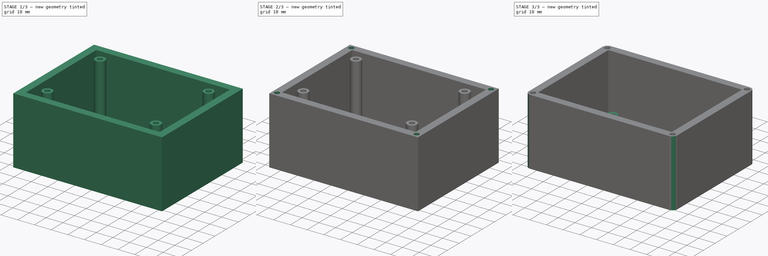
[diagram: build sequence overview — one tinted view per stage of 3, left to right]
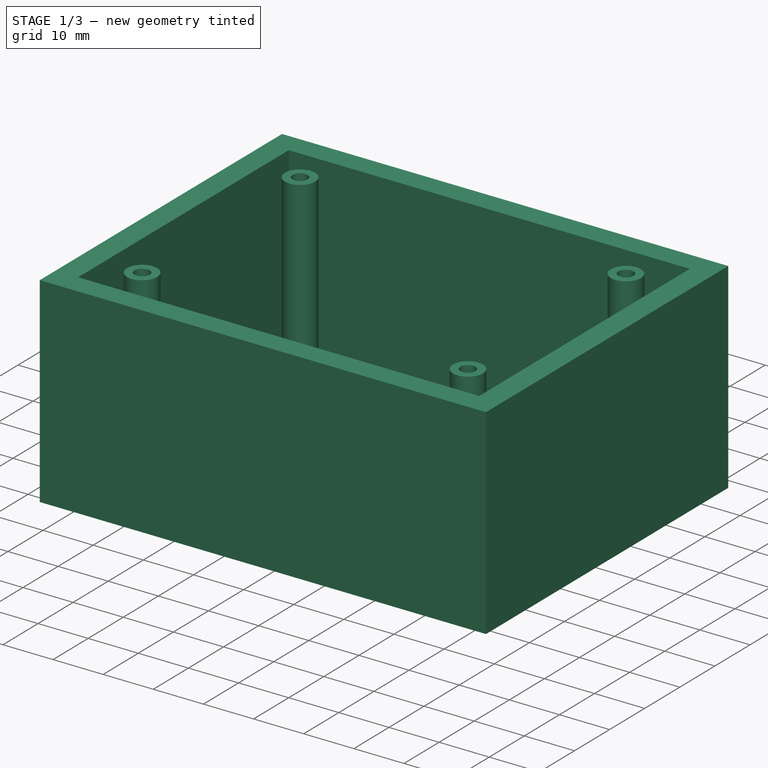
[diagram: stage 1 of 3 — iso view after this stage's code; geometry added in this stage tinted green]
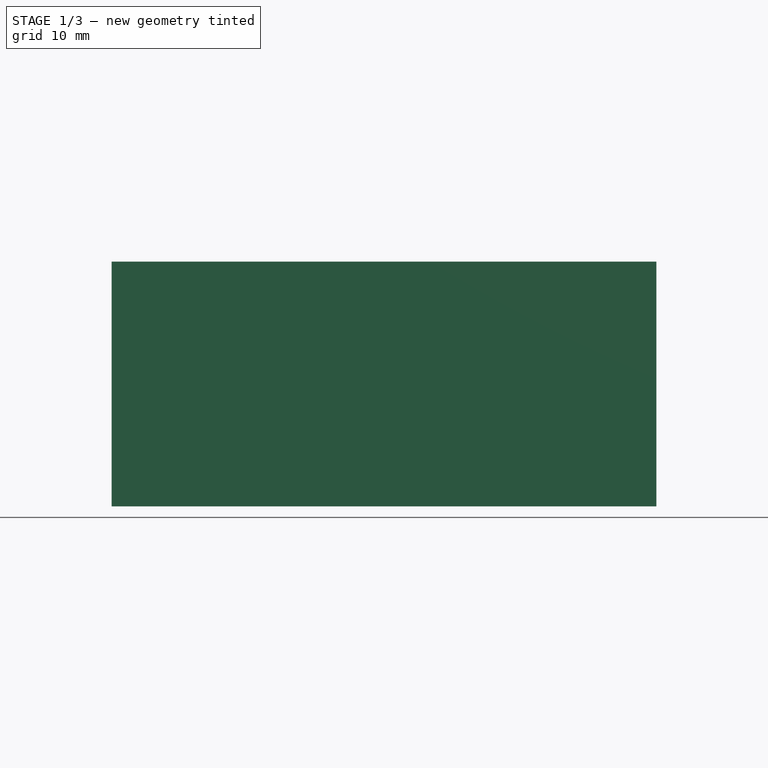
[diagram: stage 1 of 3 — front view after this stage's code; geometry added in this stage tinted green]
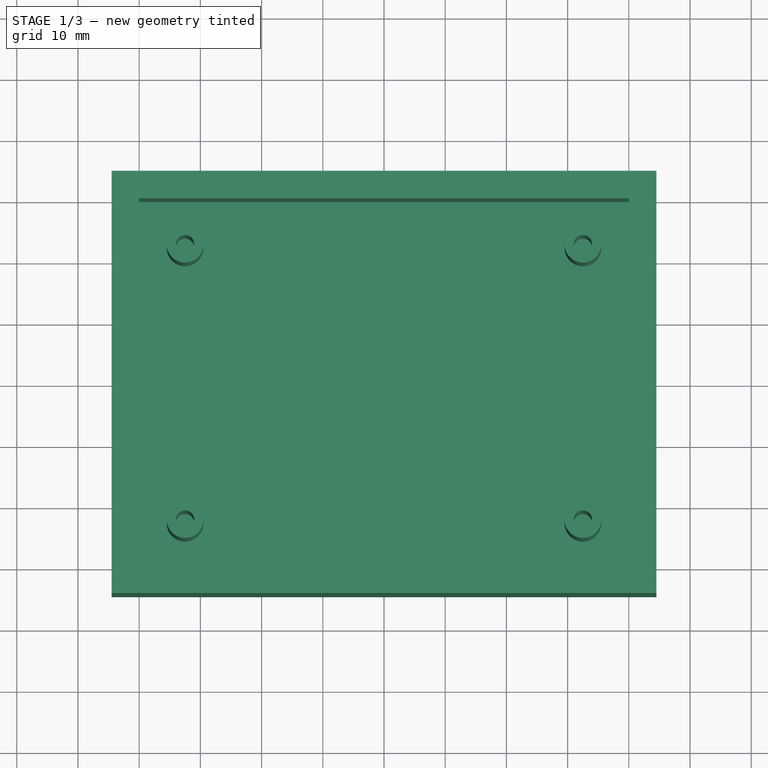
[diagram: stage 1 of 3 — top view after this stage's code; geometry added in this stage tinted green]
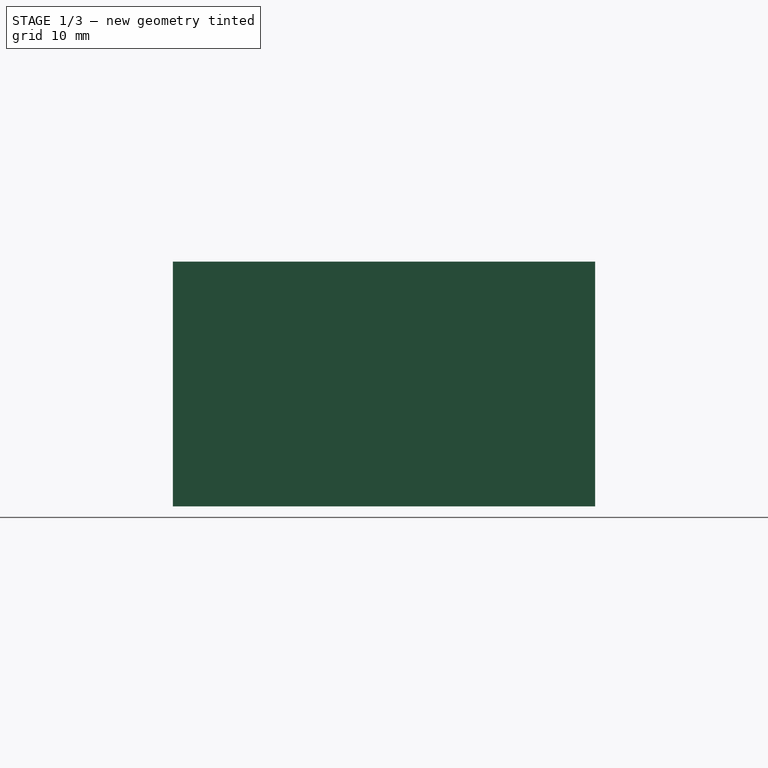
[diagram: stage 1 of 3 — right view after this stage's code; geometry added in this stage tinted green]
FCSTD DOCUMENT  (FreeCAD 1.0R38641 +468 (Git))
Label: derivation_box
License: All rights reserved
LicenseURL: https://en.wikipedia.org/wiki/All_rights_reserved
objects: Sketcher::SketchObject×4, PartDesign::Pocket×3, PartDesign::Plane×2, PartDesign::Pad×1, PartDesign::Fillet×1, PartDesign::Body×1, Spreadsheet::Sheet×1
note: 26 computed .brp shape members not serialized (recipe doc carries the construction recipe); baked Part::Feature solids carry a one-line shape summary decoded from their .brp

FEATURE [Sketcher::SketchObject] Sketch
  ArcFitTolerance = 1e-06
  AttachmentSupport = -> [XY_Plane]
  FullyConstrained = true
  MakeInternals = false
  MapMode = 5
  sketch-geometry (4):
    g0: LineSegment StartX=-44.5 StartY=-34.5 StartZ=0 EndX=44.5 EndY=-34.5 EndZ=0
    g1: LineSegment StartX=44.5 StartY=-34.5 StartZ=0 EndX=44.5 EndY=34.5 EndZ=0
    g2: LineSegment StartX=44.5 StartY=34.5 StartZ=0 EndX=-44.5 EndY=34.5 EndZ=0
    g3: LineSegment StartX=-44.5 StartY=34.5 StartZ=0 EndX=-44.5 EndY=-34.5 EndZ=0
  constraints (11):
    c: Coincident(g0,g1)
    c: Coincident(g1,g2)
    c: Coincident(g2,g3)
    c: Coincident(g3,g0)
    c: Horizontal(g0)
    c: Horizontal(g2)
    c: Vertical(g1)
    c: Vertical(g3)
    c: DistanceX(g0,g0) = 89
    c: DistanceY(g1,g1) = 69
    c: Symmetric(g0,g1,g-1)
FEATURE [PartDesign::Pad] Pad
  Direction = (0,0,1)
  Length = 40
  Length2 = 10
  Profile = -> Sketch
  ReferenceAxis = -> Sketch [N_Axis]
  Refine = true
  Suppressed = false
  Type = 0
FEATURE [PartDesign::Plane] DatumPlane
  AttachmentSupport = -> [Pad]
  Length = 104.673
  MapMode = 5
  Placement = pos=(0,0,40) rot=(0,0,1;0rad)
  ResizeMode = 0
  Width = 84.6729
FEATURE [Sketcher::SketchObject] Sketch001
  ArcFitTolerance = 1e-06
  AttachmentSupport = -> [DatumPlane]
  FullyConstrained = true
  MakeInternals = false
  MapMode = 5
  Placement = pos=(0,0,40) rot=(0,0,1;0rad)
  sketch-geometry (20):
    g0: LineSegment [constr] StartX=-32.5 StartY=-22.5 StartZ=0 EndX=32.5 EndY=-22.5 EndZ=0
    g1: LineSegment [constr] StartX=32.5 StartY=-22.5 StartZ=0 EndX=32.5 EndY=22.5 EndZ=0
    g2: LineSegment [constr] StartX=32.5 StartY=22.5 StartZ=0 EndX=-32.5 EndY=22.5 EndZ=0
    g3: LineSegment [constr] StartX=-32.5 StartY=22.5 StartZ=0 EndX=-32.5 EndY=-22.5 EndZ=0
    g4: GeomPoint [constr] X=0 Y=0 Z=0
    g5: Circle CenterX=-32.5 CenterY=22.5 CenterZ=0 NormalX=0 NormalY=0 NormalZ=1 AngleXU=0 Radius=1.5
    g6: Circle CenterX=32.5 CenterY=22.5 CenterZ=0 NormalX=0 NormalY=0 NormalZ=1 AngleXU=0 Radius=1.5
    g7: Circle CenterX=32.5 CenterY=-22.5 CenterZ=0 NormalX=0 NormalY=0 NormalZ=1 AngleXU=0 Radius=1.5
    g8: Circle CenterX=-32.5 CenterY=-22.5 CenterZ=0 NormalX=0 NormalY=0 NormalZ=1 AngleXU=0 Radius=1.5
    g9: LineSegment StartX=-40 StartY=-30 StartZ=0 EndX=40 EndY=-30 EndZ=0
    g10: LineSegment StartX=40 StartY=-30 StartZ=0 EndX=40 EndY=30 EndZ=0
    g11: LineSegment StartX=40 StartY=30 StartZ=0 EndX=-40 EndY=30 EndZ=0
    g12: LineSegment StartX=-40 StartY=30 StartZ=0 EndX=-40 EndY=-30 EndZ=0
    g13: GeomPoint [constr] X=0 Y=0 Z=0
    g14: GeomPoint [constr] X=0 Y=0 Z=0
    g15: GeomPoint [constr] X=0 Y=0 Z=0
    g16: Circle CenterX=-32.5 CenterY=22.5 CenterZ=0 NormalX=0 NormalY=0 NormalZ=1 AngleXU=0 Radius=3
    g17: Circle CenterX=32.5 CenterY=22.5 CenterZ=0 NormalX=0 NormalY=0 NormalZ=1 AngleXU=0 Radius=3
    g18: Circle CenterX=32.5 CenterY=-22.5 CenterZ=0 NormalX=0 NormalY=0 NormalZ=1 AngleXU=0 Radius=3
    g19: Circle CenterX=-32.5 CenterY=-22.5 CenterZ=0 NormalX=0 NormalY=0 NormalZ=1 AngleXU=0 Radius=3
  constraints (42):
    c: Coincident(g0,g1)
    c: Coincident(g1,g2)
    c: Coincident(g2,g3)
    c: Coincident(g3,g0)
    c: Horizontal(g0)
    c: Horizontal(g2)
    c: Vertical(g1)
    c: Vertical(g3)
    c: Symmetric(g2,g0,g4)
    c: Distance(g1,g3) = 65
    c: Distance(g0,g2) = 45
    c: Coincident(g4,g-1)
    c: Coincident(g5,g2)
    c: Coincident(g6,g1)
    c: Coincident(g7,g0)
    c: Coincident(g8,g0)
    c: Equal(g7,g8)
    c: Equal(g8,g5)
    c: Equal(g5,g6)
    c: Diameter(g6) = 3
    c: Coincident(g9,g10)
    c: Coincident(g10,g11)
    c: Coincident(g11,g12)
    c: Coincident(g12,g9)
    c: Horizontal(g9)
    c: Horizontal(g11)
    c: Vertical(g10)
    c: Vertical(g12)
    c: Symmetric(g11,g9,g13)
    c: Coincident(g13,g4)
    c: DistanceX(g9,g9) = 80
    c: DistanceY(g12,g12) = 60
    c: Coincident(g14,g4)
    c: Coincident(g15,g4)
    c: Coincident(g16,g2)
    c: Coincident(g17,g1)
    c: Coincident(g18,g0)
    c: Coincident(g19,g0)
    c: Equal(g16,g19)
    c: Equal(g19,g18)
    c: Equal(g18,g17)
    c: Diameter(g17) = 6
FEATURE [PartDesign::Pocket] Pocket
  BaseFeature = -> Pad
  Direction = (0,0,-1)
  Length = 35
  Length2 = 5
  Profile = -> Sketch001
  ReferenceAxis = -> Sketch001 [N_Axis]
  Refine = true
  Suppressed = false
  Type = 0
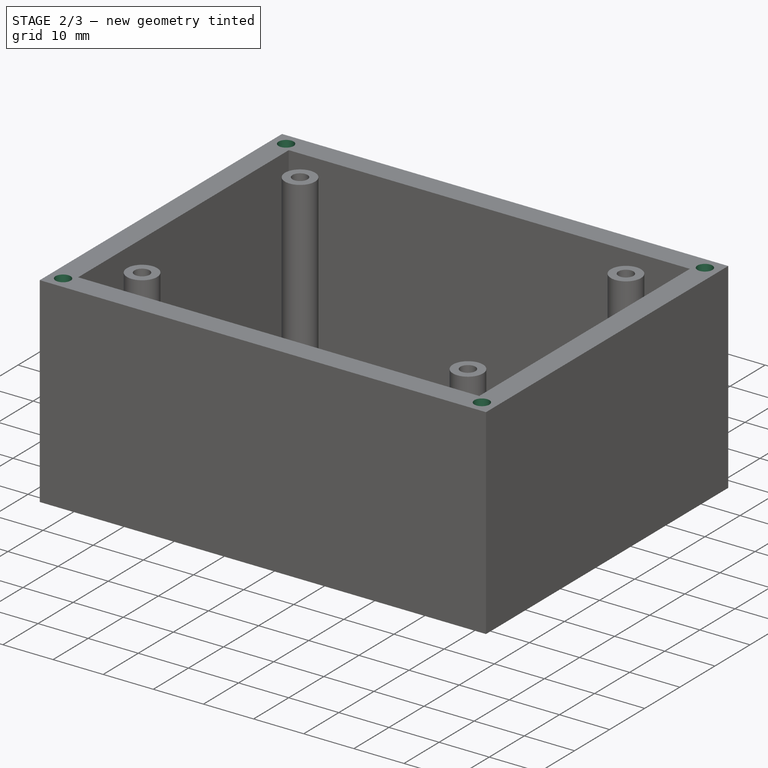
[diagram: stage 2 of 3 — iso view after this stage's code; geometry added in this stage tinted green]
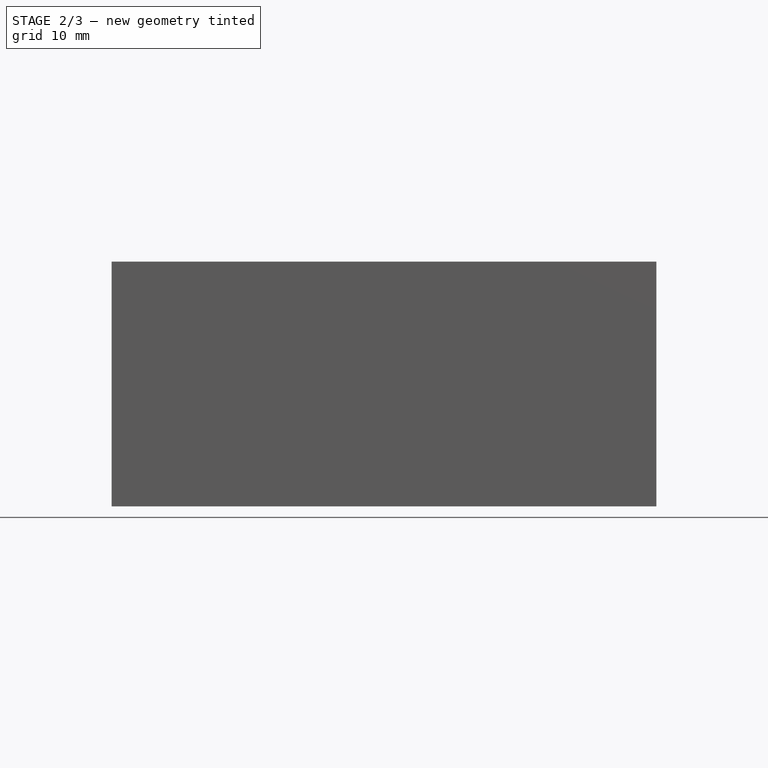
[diagram: stage 2 of 3 — front view after this stage's code; geometry added in this stage tinted green]
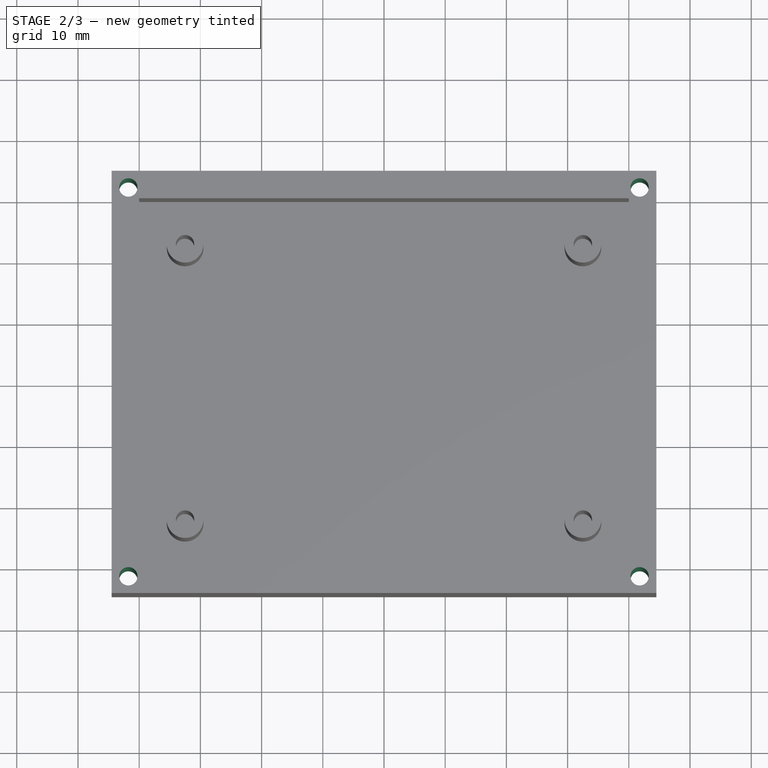
[diagram: stage 2 of 3 — top view after this stage's code; geometry added in this stage tinted green]
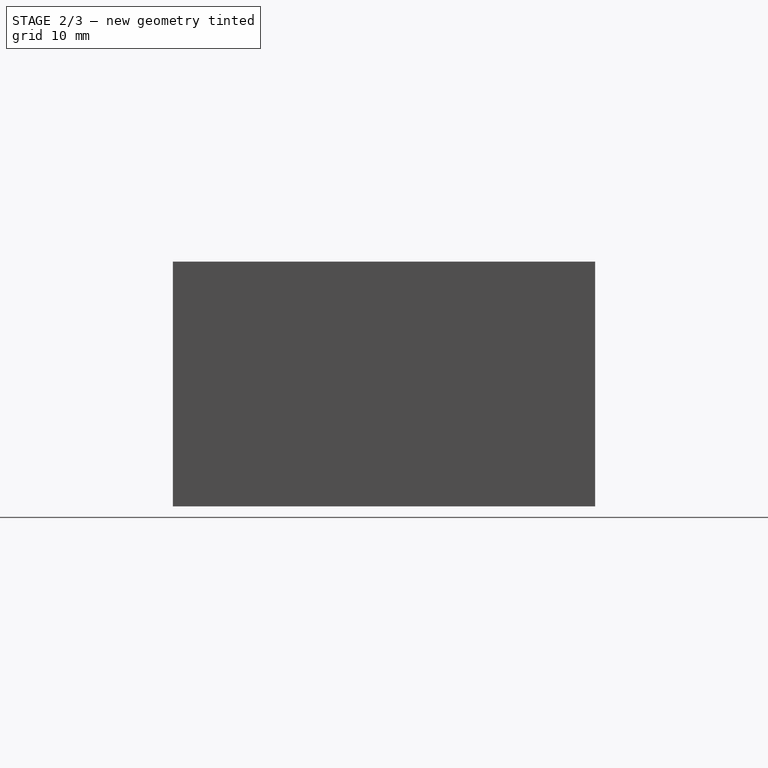
[diagram: stage 2 of 3 — right view after this stage's code; geometry added in this stage tinted green]
FEATURE [Sketcher::SketchObject] Sketch002
  ArcFitTolerance = 1e-06
  AttachmentSupport = -> [DatumPlane]
  ExternalGeometry = -> [Pocket]
  FullyConstrained = true
  MakeInternals = false
  MapMode = 5
  Placement = pos=(0,0,40) rot=(0,0,1;0rad)
  sketch-geometry (9):
    g0: Circle CenterX=41.7678 CenterY=31.7678 CenterZ=0 NormalX=0 NormalY=0 NormalZ=1 AngleXU=0 Radius=1.5
    g1: Circle CenterX=41.7678 CenterY=-31.7678 CenterZ=0 NormalX=0 NormalY=0 NormalZ=1 AngleXU=0 Radius=1.5
    g2: Circle CenterX=-41.7678 CenterY=-31.7678 CenterZ=0 NormalX=0 NormalY=0 NormalZ=1 AngleXU=0 Radius=1.5
    g3: Circle CenterX=-41.7678 CenterY=31.7678 CenterZ=0 NormalX=0 NormalY=0 NormalZ=1 AngleXU=0 Radius=1.5
    g4: LineSegment [constr] StartX=-41.7678 StartY=-31.7678 StartZ=0 EndX=41.7678 EndY=-31.7678 EndZ=0
    g5: LineSegment [constr] StartX=41.7678 StartY=-31.7678 StartZ=0 EndX=41.7678 EndY=31.7678 EndZ=0
    g6: LineSegment [constr] StartX=41.7678 StartY=31.7678 StartZ=0 EndX=-41.7678 EndY=31.7678 EndZ=0
    g7: LineSegment [constr] StartX=-41.7678 StartY=31.7678 StartZ=0 EndX=-41.7678 EndY=-31.7678 EndZ=0
    g8: LineSegment [constr] StartX=40 StartY=30 StartZ=0 EndX=44.5 EndY=34.5 EndZ=0
  constraints (20):
    c: Coincident(g4,g5)
    c: Coincident(g5,g6)
    c: Coincident(g6,g7)
    c: Coincident(g7,g4)
    c: Horizontal(g4)
    c: Vertical(g5)
    c: Coincident(g5,g0)
    c: Coincident(g3,g6)
    c: Coincident(g2,g4)
    c: Coincident(g1,g4)
    c: Equal(g1,g2)
    c: Equal(g2,g3)
    c: Equal(g3,g0)
    c: Diameter(g0) = 3
    c: Symmetric(g3,g1,g-1)
    c: Symmetric(g2,g0,g-1)
    c: Coincident(g8,g-3)
    c: Coincident(g8,g-5)
    c: PointOnObject(g0,g8)
    c: Distance(g0,g8) = 2.5
FEATURE [PartDesign::Pocket] Pocket001
  BaseFeature = -> Pocket
  Direction = (0,0,-1)
  Length = 5
  Length2 = 5
  Profile = -> Sketch002
  ReferenceAxis = -> Sketch002 [N_Axis]
  Refine = true
  Suppressed = false
  Type = 1
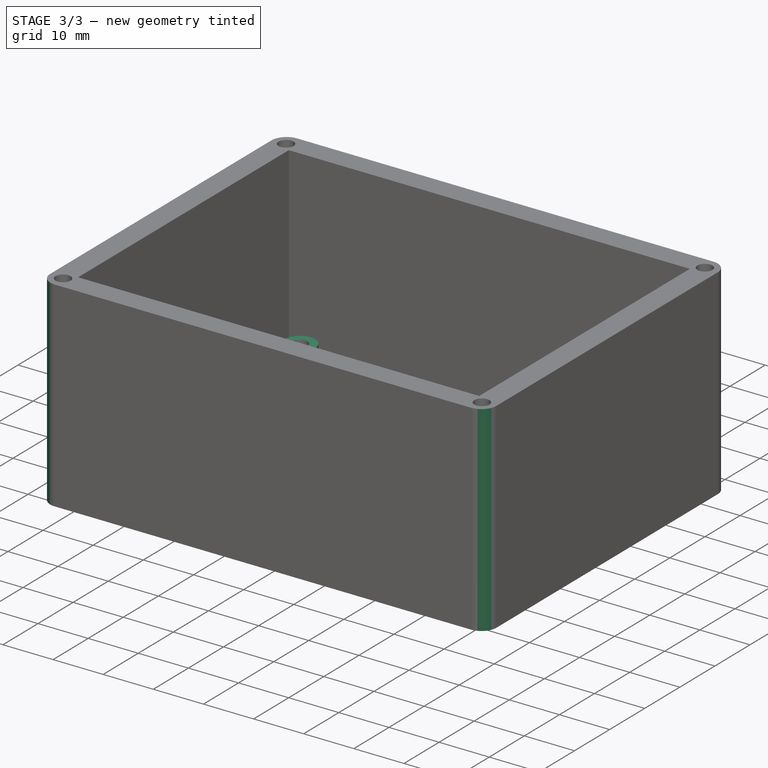
[diagram: stage 3 of 3 — iso view after this stage's code; geometry added in this stage tinted green]
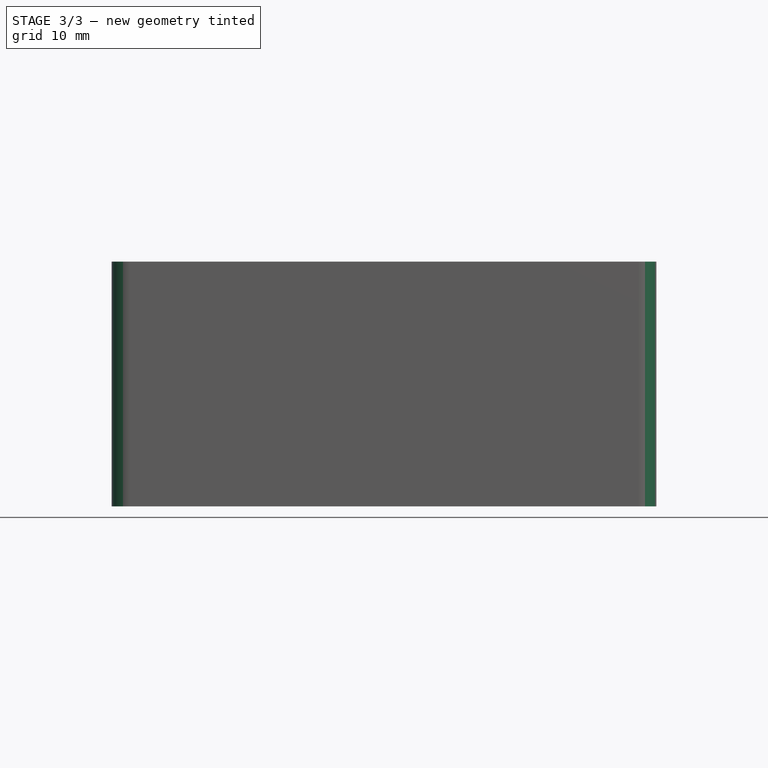
[diagram: stage 3 of 3 — front view after this stage's code; geometry added in this stage tinted green]
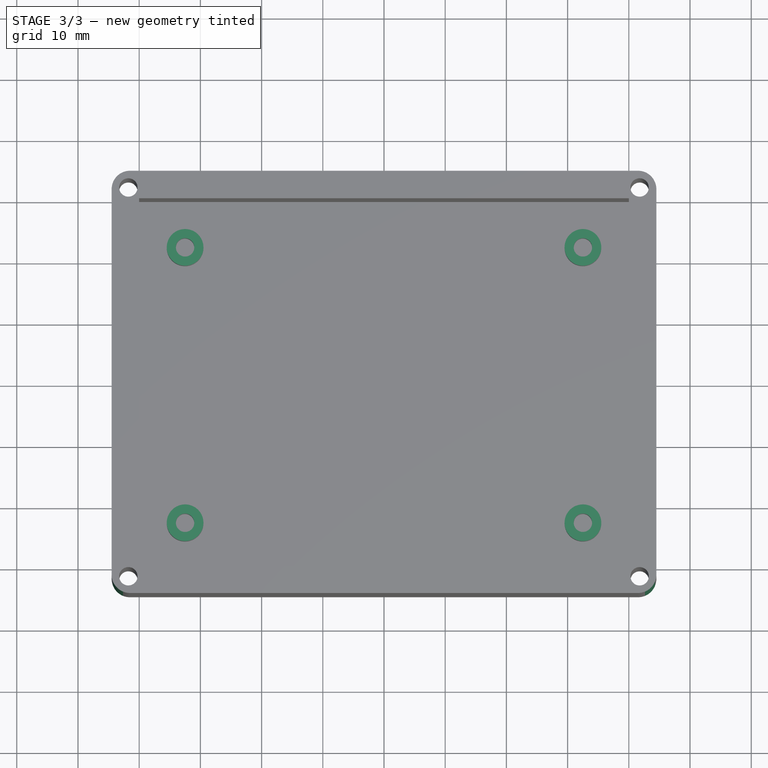
[diagram: stage 3 of 3 — top view after this stage's code; geometry added in this stage tinted green]
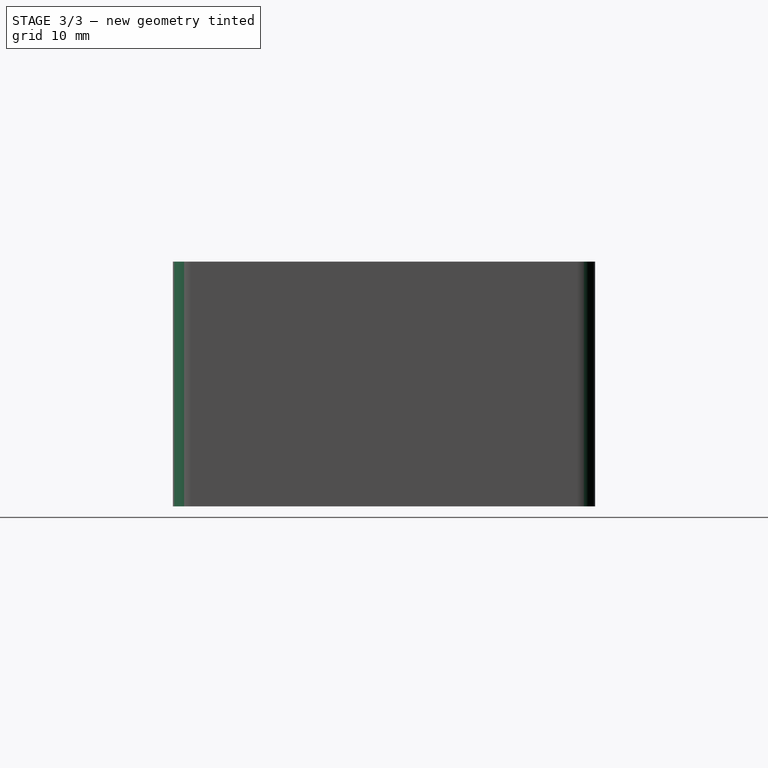
[diagram: stage 3 of 3 — right view after this stage's code; geometry added in this stage tinted green]
FEATURE [Sketcher::SketchObject] Sketch003
  ArcFitTolerance = 1e-06
  AttachmentSupport = -> [DatumPlane]
  FullyConstrained = false
  MakeInternals = false
  MapMode = 5
  Placement = pos=(0,0,40) rot=(0,0,1;0rad)
  sketch-geometry (5):
    g0: LineSegment StartX=-38.446 StartY=-28.21 StartZ=0 EndX=38.446 EndY=-28.21 EndZ=0
    g1: LineSegment StartX=38.446 StartY=-28.21 StartZ=0 EndX=38.446 EndY=28.21 EndZ=0
    g2: LineSegment StartX=38.446 StartY=28.21 StartZ=0 EndX=-38.446 EndY=28.21 EndZ=0
    g3: LineSegment StartX=-38.446 StartY=28.21 StartZ=0 EndX=-38.446 EndY=-28.21 EndZ=0
    g4: GeomPoint [constr] X=0 Y=0 Z=0
  constraints (10):
    c: Coincident(g0,g1)
    c: Coincident(g1,g2)
    c: Coincident(g2,g3)
    c: Coincident(g3,g0)
    c: Horizontal(g0)
    c: Horizontal(g2)
    c: Vertical(g1)
    c: Vertical(g3)
    c: Symmetric(g2,g0,g4)
    c: Coincident(g4,g-1)
FEATURE [PartDesign::Pocket] Pocket002
  BaseFeature = -> Pocket001
  Direction = (0,0,-1)
  Length = 30
  Length2 = 5
  Profile = -> Sketch003
  ReferenceAxis = -> Sketch003 [N_Axis]
  Refine = true
  Suppressed = false
  Type = 0
FEATURE [PartDesign::Fillet] Fillet
  Base = -> Pocket002 [Edge1,Edge2,Edge8,Edge5]
  BaseFeature = -> Pocket002
  Radius = 3
  Refine = true
  SupportTransform = false
  Suppressed = false
  UseAllEdges = false
FEATURE [PartDesign::Plane] DatumPlane001
  AttachmentSupport = -> [Fillet]
  Length = 82.394
  MapMode = 5
  Placement = pos=(44.5,0,0) rot=(0.57735,0.57735,0.57735;2.0944rad)
  ResizeMode = 0
  Width = 78.394
FEATURE [PartDesign::Body] Body
  AllowCompound = false
  Group = -> [Sketch,Pad,DatumPlane,Sketch001,Pocket,Sketch002,Pocket001,Sketch003,Pocket002,Fillet,DatumPlane001]
  Origin = -> Origin
  Tip = -> Fillet
FEATURE [Spreadsheet::Sheet] Spreadsheet
  cells = A1='PCB SIZE; A2='pcb_H; B2(pcb_H)=70; A3='pcb_W; B3(pcb_W)=50; A4='holes_offst; B4(holes_offst)=5; A6='BOX SIZE; A7='thickness; B7(thickness)=3; A8='h_pcb; B8(h_pcb)=4; A9='box_h; B9(box_h)=35; A11='HOLES; A12='pcb_holes; B12(pcb_holes)=2; A13='box_holes; B13(box_holes)=3
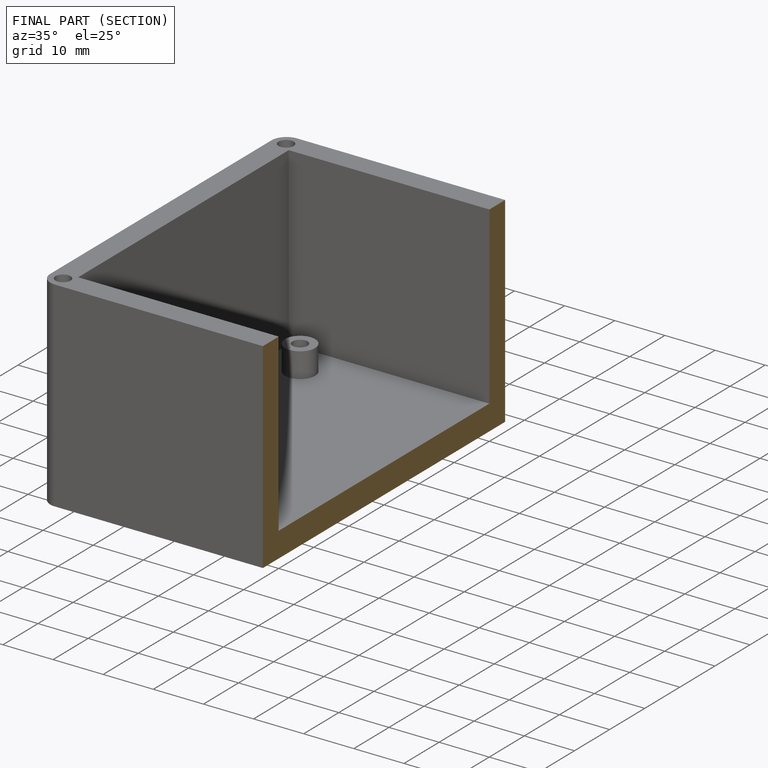
[diagram: finished part — half-section view (interior)]
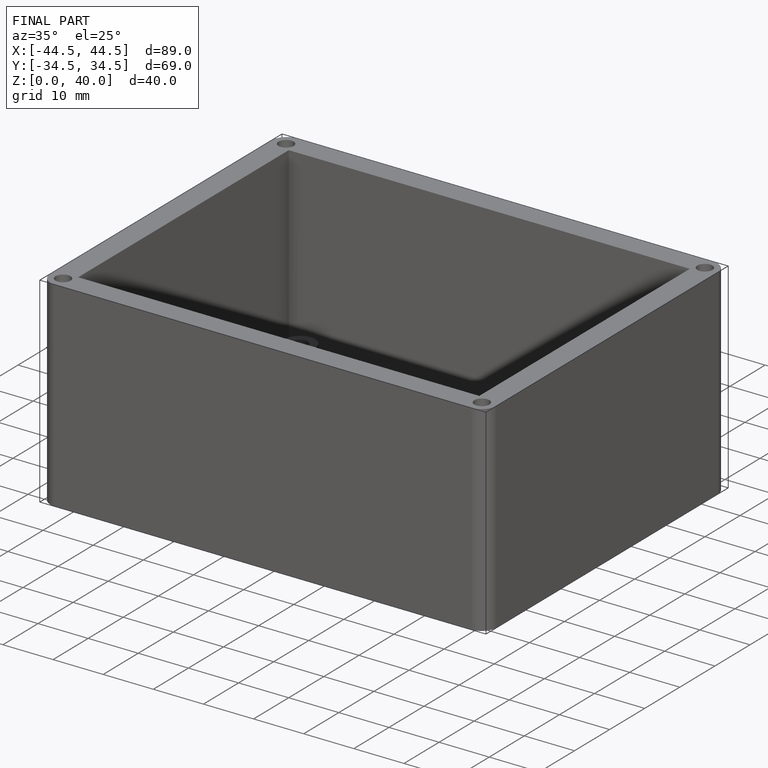
[diagram: finished part — iso view with bounding-box wireframe]
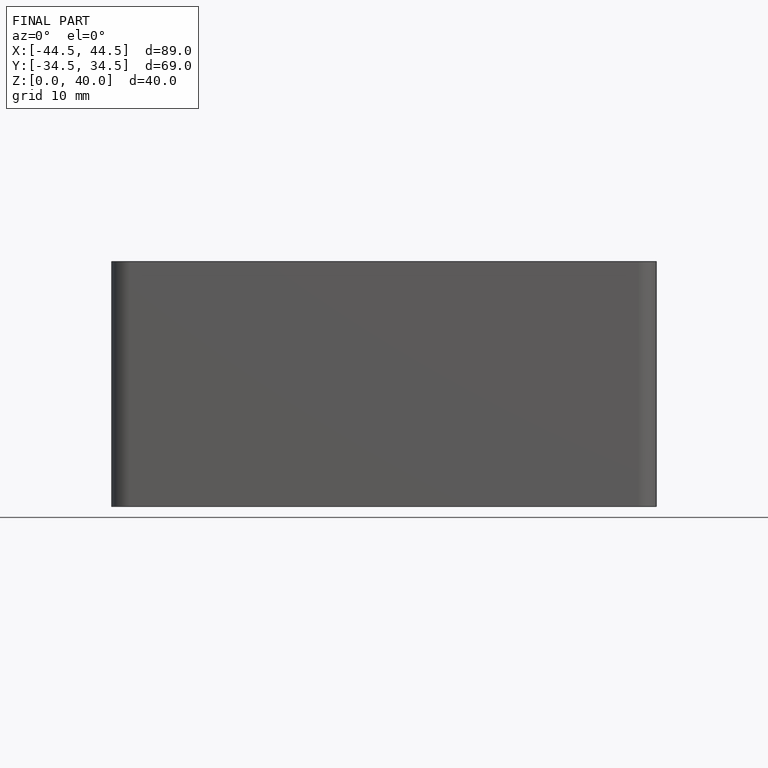
[diagram: finished part — front view with bounding-box wireframe]
